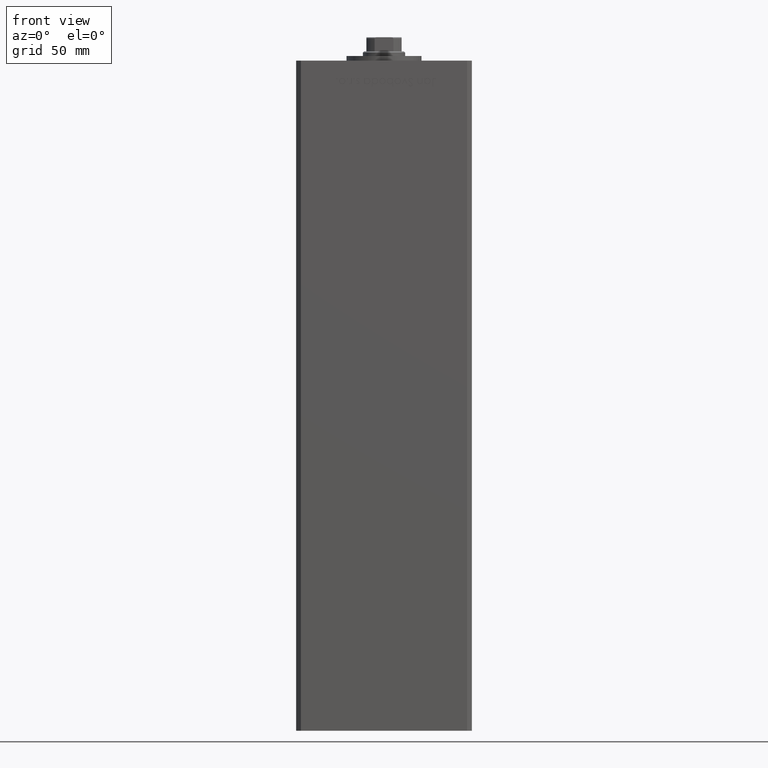
[diagram: clean part render]
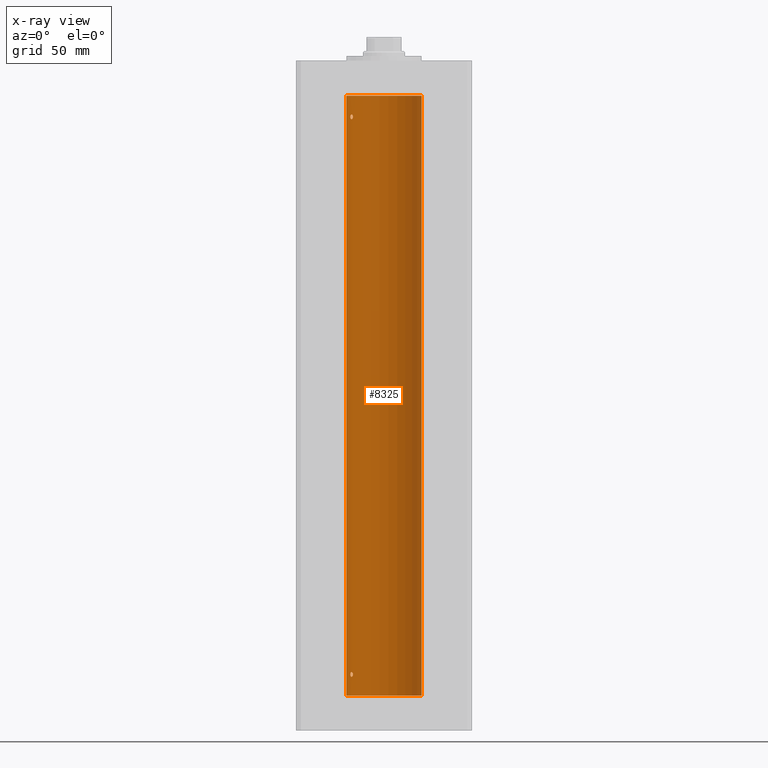
[diagram: x-ray — body ghosted, one internal face saturated and labeled with its STEP entity id]
A machine part, front view, then the same camera in x-ray: the body is ghosted and one INTERNAL B-rep face — a face not visible from any outside direction — is saturated and labeled: STEP entity #8325.
In plain terms, the highlighted cylindrical surface (partial cylindrical patch) has radius 16 mm, axis along (-0, -0, -1).
Its self-contained STEP definition (entity closure, byte-faithful):
#967 = CARTESIAN_POINT ( 'NONE',  ( 0.000000000000000000, 0.000000000000000000, 256.0000000000000000 ) ) ;
#1080 = ORIENTED_EDGE ( 'NONE', *, *, #6053, .T. ) ;
#1127 = CARTESIAN_POINT ( 'NONE',  ( -13.22875655532295447, 8.999999999999996447, 9.140644760917734146 ) ) ;
#1305 = AXIS2_PLACEMENT_3D ( 'NONE', #9650, #20976, #48941 ) ;
#2187 = EDGE_CURVE ( 'NONE', #42046, #39313, #3084, .T. ) ;
#2415 = CARTESIAN_POINT ( 'NONE',  ( -14.37227256866306213, 7.031482256185711321, 247.2844572409765362 ) ) ;
#2781 = CARTESIAN_POINT ( 'NONE',  ( -14.11621438951177687, 7.533308783217008475, 246.1065710718394826 ) ) ;
#2835 = CARTESIAN_POINT ( 'NONE',  ( -13.70481462797718031, 8.258098555717506173, 8.025997477291133109 ) ) ;
#3084 = B_SPLINE_CURVE_WITH_KNOTS ( 'NONE', 3,
 ( #14476, #35003, #27093, #42672, #46627, #10519, #33984, #50601, #46874, #22634, #2835, #30020, #14721, #10778, #13948, #37943, #38716, #18912, #50328, #51084 ),
 .UNSPECIFIED., .F., .F.,
 ( 4, 2, 2, 2, 2, 2, 2, 2, 2, 4 ),
 ( 0.000000000000000000, 0.0004222090241339719976, 0.0008444180482679439952, 0.001266627072401915830, 0.001688836096535887990, 0.002111045120669860151, 0.002533254144803831660, 0.002955463168937803604, 0.003166567681004790660, 0.003377672193071777282 ),
 .UNSPECIFIED. ) ;
#6053 = EDGE_CURVE ( 'NONE', #17882, #10549, #30009, .T. ) ;
#6374 = CARTESIAN_POINT ( 'NONE',  ( -14.27521483392928836, 7.227035590538638310, 247.6478598706881940 ) ) ;
#6898 = CARTESIAN_POINT ( 'NONE',  ( -14.27521483392929014, 7.227035590538633869, 9.647859870688195727 ) ) ;
#7003 = CARTESIAN_POINT ( 'NONE',  ( -13.49759407097375075, 8.592283911330223845, 246.1840991521276862 ) ) ;
#7226 = ORIENTED_EDGE ( 'NONE', *, *, #8198, .F. ) ;
#8198 = EDGE_CURVE ( 'NONE', #14449, #24469, #40503, .T. ) ;
#8325 = ADVANCED_FACE ( 'NONE', ( #24948, #25219, #41051 ), #52135, .F. ) ;
#8484 = ORIENTED_EDGE ( 'NONE', *, *, #29447, .T. ) ;
#8947 = AXIS2_PLACEMENT_3D ( 'NONE', #34978, #15458, #11013 ) ;
#9335 = CARTESIAN_POINT ( 'NONE',  ( -13.32457971225032445, 8.857769707964649797, 9.531999662746555302 ) ) ;
#9650 = CARTESIAN_POINT ( 'NONE',  ( 0.000000000000000000, 0.000000000000000000, 0.000000000000000000 ) ) ;
#10094 = CARTESIAN_POINT ( 'NONE',  ( -13.70792461986390620, 8.256614593260307444, 9.996621535642271184 ) ) ;
#10352 = CARTESIAN_POINT ( 'NONE',  ( -14.11618354197461400, 7.533333301880474231, 247.8932076519334373 ) ) ;
#10519 = CARTESIAN_POINT ( 'NONE',  ( -14.17528142432533755, 7.421143801852455368, 8.173943073538659121 ) ) ;
#10549 = VERTEX_POINT ( 'NONE', #14798 ) ;
#10592 = CIRCLE ( 'NONE', #1305, 16.00000000000000000 ) ;
#10721 = CARTESIAN_POINT ( 'NONE',  ( -14.31660136508398828, 7.144151923086063505, 246.4646217954444580 ) ) ;
#10778 = CARTESIAN_POINT ( 'NONE',  ( -13.37674940693422521, 8.779234808442870630, 8.360244157126784259 ) ) ;
#10868 = CARTESIAN_POINT ( 'NONE',  ( -13.32457971225032622, 8.857769707964648020, 247.5319996627465002 ) ) ;
#11013 = DIRECTION ( 'NONE',  ( 1.000000000000000000, 0.000000000000000000, 0.000000000000000000 ) ) ;
#12780 = CARTESIAN_POINT ( 'NONE',  ( -14.38749456993815912, 6.999999999999998224, 247.0000000000000000 ) ) ;
#13789 = CARTESIAN_POINT ( 'NONE',  ( -14.11618354197461400, 7.533333301880478672, 9.893207651933416003 ) ) ;
#13948 = CARTESIAN_POINT ( 'NONE',  ( -13.32426099938365027, 8.858246960865852060, 8.468874877532968526 ) ) ;
#14449 = VERTEX_POINT ( 'NONE', #12780 ) ;
#14476 = CARTESIAN_POINT ( 'NONE',  ( -14.38749456993815912, 6.999999999999997335, 9.000000000000000000 ) ) ;
#14721 = CARTESIAN_POINT ( 'NONE',  ( -13.49759407097374897, 8.592283911330223845, 8.184099152127670251 ) ) ;
#14798 = CARTESIAN_POINT ( 'NONE',  ( -16.00000000000000000, 0.000000000000000000, 0.000000000000000000 ) ) ;
#14913 = CARTESIAN_POINT ( 'NONE',  ( -13.23400746336172240, 8.992294519018086518, 246.8578145590230406 ) ) ;
#15381 = EDGE_LOOP ( 'NONE', ( #19319, #8484, #1080, #51624 ) ) ;
#15423 = CARTESIAN_POINT ( 'NONE',  ( -13.37674940693422876, 8.779234808442867077, 246.3602441571267718 ) ) ;
#15458 = DIRECTION ( 'NONE',  ( -0.000000000000000000, 0.000000000000000000, 1.000000000000000000 ) ) ;
#17215 = CARTESIAN_POINT ( 'NONE',  ( -13.24976519864029179, 8.969293778684576779, 9.281535226335156707 ) ) ;
#17882 = VERTEX_POINT ( 'NONE', #39515 ) ;
#18342 = AXIS2_PLACEMENT_3D ( 'NONE', #967, #49236, #40530 ) ;
#18397 = EDGE_LOOP ( 'NONE', ( #7226, #26609 ) ) ;
#18755 = CARTESIAN_POINT ( 'NONE',  ( -14.31650799088418324, 7.144337649771912879, 9.535522627373689275 ) ) ;
#18858 = CARTESIAN_POINT ( 'NONE',  ( -13.70481462797717676, 8.258098555717509726, 246.0259974772911562 ) ) ;
#18912 = CARTESIAN_POINT ( 'NONE',  ( -13.23400746336172951, 8.992294519018086518, 8.857814559023015732 ) ) ;
#19316 = LINE ( 'NONE', #42557, #46965 ) ;
#19319 = ORIENTED_EDGE ( 'NONE', *, *, #38674, .F. ) ;
#19636 = CARTESIAN_POINT ( 'NONE',  ( -13.56386909142669772, 8.487613976483636691, 246.1182242979961359 ) ) ;
#20976 = DIRECTION ( 'NONE',  ( -0.000000000000000000, 0.000000000000000000, 1.000000000000000000 ) ) ;
#21952 = CARTESIAN_POINT ( 'NONE',  ( -13.98878315975729159, 7.767347947480346626, 9.980546143261280534 ) ) ;
#22634 = CARTESIAN_POINT ( 'NONE',  ( -13.77582987033441064, 8.139210687602712824, 8.002110545841816247 ) ) ;
#22692 = CARTESIAN_POINT ( 'NONE',  ( 16.00000000000000000, 1.959434878635765131E-15, 256.0000000000000000 ) ) ;
#22835 = CARTESIAN_POINT ( 'NONE',  ( -13.25390108270225120, 8.962947079338391632, 246.7214357623584533 ) ) ;
#22974 = CARTESIAN_POINT ( 'NONE',  ( -14.38749456993816445, 6.999999999999997335, 9.142625441524202756 ) ) ;
#23077 = CARTESIAN_POINT ( 'NONE',  ( -13.22875655532295625, 8.999999999999994671, 246.9295656223615936 ) ) ;
#23322 = VECTOR ( 'NONE', #46095, 1000.000000000000000 ) ;
#23327 = CARTESIAN_POINT ( 'NONE',  ( -14.27547848986622370, 7.226527013162184154, 246.3525557301815070 ) ) ;
#24469 = VERTEX_POINT ( 'NONE', #24632 ) ;
#24632 = CARTESIAN_POINT ( 'NONE',  ( -13.22875655532295802, 8.999999999999996447, 247.0000000000000000 ) ) ;
#24948 = FACE_OUTER_BOUND ( 'NONE', #15381, .T. ) ;
#25219 = FACE_BOUND ( 'NONE', #34271, .T. ) ;
#26008 = CARTESIAN_POINT ( 'NONE',  ( 16.00000000000000000, 1.959434878635765131E-15, 0.000000000000000000 ) ) ;
#26412 = CARTESIAN_POINT ( 'NONE',  ( -13.55800260393082546, 8.498809056167521803, 9.903643446210175227 ) ) ;
#26609 = ORIENTED_EDGE ( 'NONE', *, *, #47455, .F. ) ;
#26922 = CARTESIAN_POINT ( 'NONE',  ( -13.55800260393081835, 8.498809056167509368, 247.9036434462101681 ) ) ;
#26925 = CARTESIAN_POINT ( 'NONE',  ( -13.91892506969882959, 7.891973478508852224, 10.00155212263243953 ) ) ;
#27093 = CARTESIAN_POINT ( 'NONE',  ( -14.37250282441143767, 7.031013007322936659, 8.716856996037261496 ) ) ;
#27546 = CARTESIAN_POINT ( 'NONE',  ( -13.32426099938365383, 8.858246960865844954, 246.4688748775329827 ) ) ;
#27889 = EDGE_CURVE ( 'NONE', #37026, #10549, #10592, .T. ) ;
#28359 = ORIENTED_EDGE ( 'NONE', *, *, #50285, .F. ) ;
#29447 = EDGE_CURVE ( 'NONE', #34051, #17882, #31631, .T. ) ;
#29553 = CARTESIAN_POINT ( 'NONE',  ( -14.38749456993815912, 6.999999999999997335, 9.000000000000000000 ) ) ;
#30009 = LINE ( 'NONE', #50317, #23322 ) ;
#30020 = CARTESIAN_POINT ( 'NONE',  ( -13.56386909142669950, 8.487613976483636691, 8.118224297996075478 ) ) ;
#30732 = CARTESIAN_POINT ( 'NONE',  ( -14.38749456993815912, 6.999999999999998224, 247.0000000000000000 ) ) ;
#30880 = CARTESIAN_POINT ( 'NONE',  ( -13.22875655532296157, 8.999999999999994671, 247.1406447609177519 ) ) ;
#30941 = DIRECTION ( 'NONE',  ( -0.000000000000000000, -0.000000000000000000, -1.000000000000000000 ) ) ;
#30992 = CARTESIAN_POINT ( 'NONE',  ( -13.98699950016872151, 7.770591669637114229, 246.0184768166483877 ) ) ;
#31249 = CARTESIAN_POINT ( 'NONE',  ( -14.38749456993816267, 6.999999999999999112, 246.8571474096355018 ) ) ;
#31499 = CARTESIAN_POINT ( 'NONE',  ( -13.22875655532295802, 8.999999999999996447, 247.0000000000000000 ) ) ;
#31631 = CIRCLE ( 'NONE', #8947, 16.00000000000000000 ) ;
#33984 = CARTESIAN_POINT ( 'NONE',  ( -14.11621438951177332, 7.533308783217010252, 8.106571071839512754 ) ) ;
#34051 = VERTEX_POINT ( 'NONE', #22692 ) ;
#34271 = EDGE_LOOP ( 'NONE', ( #35154, #28359 ) ) ;
#34324 = CARTESIAN_POINT ( 'NONE',  ( -13.70792461986390798, 8.256614593260307444, 247.9966215356422765 ) ) ;
#34588 = CARTESIAN_POINT ( 'NONE',  ( -14.38749456993815734, 6.999999999999997335, 247.1426254415242454 ) ) ;
#34590 = CARTESIAN_POINT ( 'NONE',  ( -13.37741691572085934, 8.778212469423014142, 9.640882860227099727 ) ) ;
#34978 = CARTESIAN_POINT ( 'NONE',  ( 0.000000000000000000, 0.000000000000000000, 256.0000000000000000 ) ) ;
#35003 = CARTESIAN_POINT ( 'NONE',  ( -14.38749456993815556, 6.999999999999997335, 8.857147409635411250 ) ) ;
#35154 = ORIENTED_EDGE ( 'NONE', *, *, #2187, .F. ) ;
#35462 = CARTESIAN_POINT ( 'NONE',  ( -13.77582987033440709, 8.139210687602719929, 246.0021105458419015 ) ) ;
#35722 = CARTESIAN_POINT ( 'NONE',  ( -13.26838749541400908, 8.941532915076043864, 246.6562177939213711 ) ) ;
#37026 = VERTEX_POINT ( 'NONE', #26008 ) ;
#37267 = CARTESIAN_POINT ( 'NONE',  ( -13.22875655532295447, 8.999999999999996447, 9.000000000000000000 ) ) ;
#37943 = CARTESIAN_POINT ( 'NONE',  ( -13.26838749541400198, 8.941532915076040311, 8.656217793921369363 ) ) ;
#38098 = CARTESIAN_POINT ( 'NONE',  ( -13.22875655532295447, 8.999999999999996447, 9.000000000000000000 ) ) ;
#38545 = CARTESIAN_POINT ( 'NONE',  ( -14.31650799088418147, 7.144337649771908438, 247.5355226273736662 ) ) ;
#38674 = EDGE_CURVE ( 'NONE', #34051, #37026, #19316, .T. ) ;
#38716 = CARTESIAN_POINT ( 'NONE',  ( -13.25390108270225298, 8.962947079338388079, 8.721435762358455079 ) ) ;
#39313 = VERTEX_POINT ( 'NONE', #38098 ) ;
#39409 = CARTESIAN_POINT ( 'NONE',  ( -13.91838063522421010, 7.892966471903945624, 245.9981483133087181 ) ) ;
#39515 = CARTESIAN_POINT ( 'NONE',  ( -16.00000000000000000, 0.000000000000000000, 256.0000000000000000 ) ) ;
#40503 = B_SPLINE_CURVE_WITH_KNOTS ( 'NONE', 3,
 ( #30732, #31249, #46819, #10721, #23327, #43131, #2781, #30992, #39409, #35462, #18858, #19636, #7003, #15423, #27546, #35722, #22835, #14913, #23077, #31499 ),
 .UNSPECIFIED., .F., .F.,
 ( 4, 2, 2, 2, 2, 2, 2, 2, 2, 4 ),
 ( 0.000000000000000000, 0.0004222090241339633240, 0.0008444180482679266480, 0.001266627072401889809, 0.001688836096535853296, 0.002111045120669816783, 0.002533254144803779619, 0.002955463168937742888, 0.003166567681004761603, 0.003377672193071779884 ),
 .UNSPECIFIED. ) ;
#40530 = DIRECTION ( 'NONE',  ( -1.000000000000000000, 0.000000000000000000, 0.000000000000000000 ) ) ;
#41051 = FACE_BOUND ( 'NONE', #18397, .T. ) ;
#42046 = VERTEX_POINT ( 'NONE', #29553 ) ;
#42438 = B_SPLINE_CURVE_WITH_KNOTS ( 'NONE', 3,
 ( #50421, #30880, #50929, #10868, #43263, #26922, #34324, #43019, #46462, #10352, #42500, #6374, #38545, #2415, #34588, #50686 ),
 .UNSPECIFIED., .F., .F.,
 ( 4, 2, 2, 2, 2, 2, 2, 4 ),
 ( 0.003377672193071779884, 0.003799209865779855366, 0.004220747538487930849, 0.005063822883904134722, 0.005485360556612237093, 0.005906898229320339463, 0.006328435902028442701, 0.006749973574736545072 ),
 .UNSPECIFIED. ) ;
#42500 = CARTESIAN_POINT ( 'NONE',  ( -14.17576283486774891, 7.420212263225987925, 247.8252530343044100 ) ) ;
#42557 = CARTESIAN_POINT ( 'NONE',  ( 16.00000000000000000, 1.959434878635765131E-15, 256.0000000000000000 ) ) ;
#42672 = CARTESIAN_POINT ( 'NONE',  ( -14.31660136508399184, 7.144151923086058176, 8.464621795444474017 ) ) ;
#43019 = CARTESIAN_POINT ( 'NONE',  ( -13.91892506969882071, 7.891973478508848672, 248.0015521226323472 ) ) ;
#43131 = CARTESIAN_POINT ( 'NONE',  ( -14.17528142432533755, 7.421143801852455368, 246.1739430735387089 ) ) ;
#43263 = CARTESIAN_POINT ( 'NONE',  ( -13.37741691572086111, 8.778212469423007036, 247.6408828602271512 ) ) ;
#44845 = B_SPLINE_CURVE_WITH_KNOTS ( 'NONE', 3,
 ( #37267, #1127, #17215, #9335, #34590, #26412, #10094, #26925, #21952, #13789, #46971, #6898, #18755, #50931, #22974, #46202 ),
 .UNSPECIFIED., .F., .F.,
 ( 4, 2, 2, 2, 2, 2, 2, 4 ),
 ( 0.003377672193071777282, 0.003799209865779874882, 0.004220747538487972482, 0.005063822883904168549, 0.005485360556612268318, 0.005906898229320367219, 0.006328435902028466120, 0.006749973574736565889 ),
 .UNSPECIFIED. ) ;
#46095 = DIRECTION ( 'NONE',  ( -0.000000000000000000, -0.000000000000000000, -1.000000000000000000 ) ) ;
#46202 = CARTESIAN_POINT ( 'NONE',  ( -14.38749456993815912, 6.999999999999997335, 9.000000000000000000 ) ) ;
#46462 = CARTESIAN_POINT ( 'NONE',  ( -13.98878315975728803, 7.767347947480344850, 247.9805461432612503 ) ) ;
#46627 = CARTESIAN_POINT ( 'NONE',  ( -14.27547848986622014, 7.226527013162185931, 8.352555730181528304 ) ) ;
#46819 = CARTESIAN_POINT ( 'NONE',  ( -14.37250282441143945, 7.031013007322939323, 246.7168569960372793 ) ) ;
#46874 = CARTESIAN_POINT ( 'NONE',  ( -13.91838063522420832, 7.892966471903941184, 7.998148313308679036 ) ) ;
#46965 = VECTOR ( 'NONE', #30941, 1000.000000000000000 ) ;
#46971 = CARTESIAN_POINT ( 'NONE',  ( -14.17576283486774535, 7.420212263225985261, 9.825253034304354927 ) ) ;
#47455 = EDGE_CURVE ( 'NONE', #24469, #14449, #42438, .T. ) ;
#48941 = DIRECTION ( 'NONE',  ( 1.000000000000000000, 0.000000000000000000, 0.000000000000000000 ) ) ;
#49236 = DIRECTION ( 'NONE',  ( -0.000000000000000000, -0.000000000000000000, -1.000000000000000000 ) ) ;
#50285 = EDGE_CURVE ( 'NONE', #39313, #42046, #44845, .T. ) ;
#50317 = CARTESIAN_POINT ( 'NONE',  ( -16.00000000000000000, 0.000000000000000000, 256.0000000000000000 ) ) ;
#50328 = CARTESIAN_POINT ( 'NONE',  ( -13.22875655532295092, 8.999999999999994671, 8.929565622361636201 ) ) ;
#50421 = CARTESIAN_POINT ( 'NONE',  ( -13.22875655532295802, 8.999999999999996447, 247.0000000000000000 ) ) ;
#50601 = CARTESIAN_POINT ( 'NONE',  ( -13.98699950016872151, 7.770591669637119558, 8.018476816648481886 ) ) ;
#50686 = CARTESIAN_POINT ( 'NONE',  ( -14.38749456993815912, 6.999999999999998224, 247.0000000000000000 ) ) ;
#50929 = CARTESIAN_POINT ( 'NONE',  ( -13.24976519864029179, 8.969293778684573226, 247.2815352263351372 ) ) ;
#50931 = CARTESIAN_POINT ( 'NONE',  ( -14.37227256866306213, 7.031482256185707769, 9.284457240976479397 ) ) ;
#51084 = CARTESIAN_POINT ( 'NONE',  ( -13.22875655532295447, 8.999999999999996447, 9.000000000000000000 ) ) ;
#51624 = ORIENTED_EDGE ( 'NONE', *, *, #27889, .F. ) ;
#52135 = CYLINDRICAL_SURFACE ( 'NONE', #18342, 16.00000000000000000 ) ;